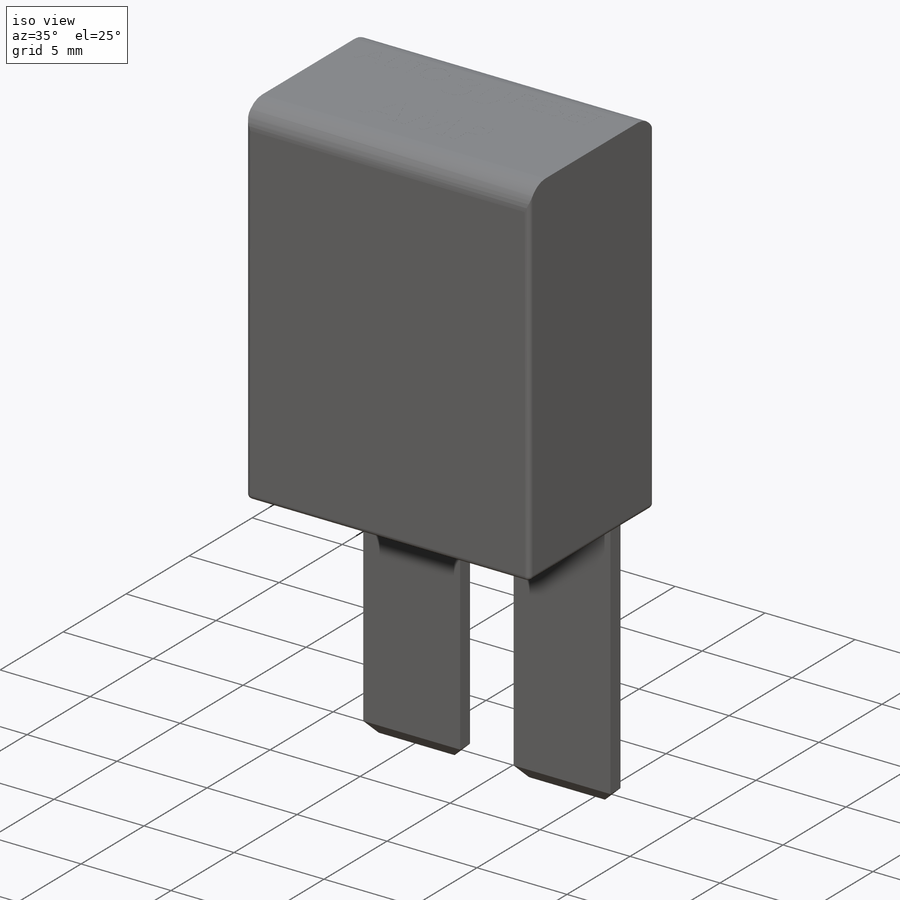
[diagram: iso view]
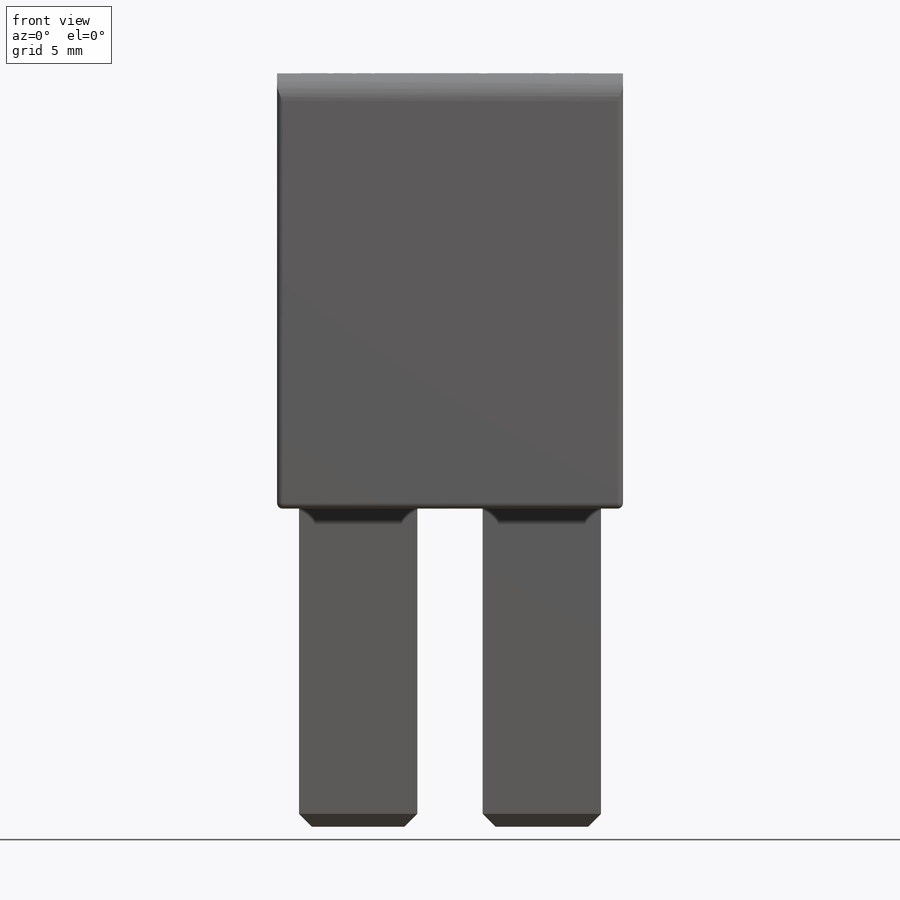
[diagram: front view]
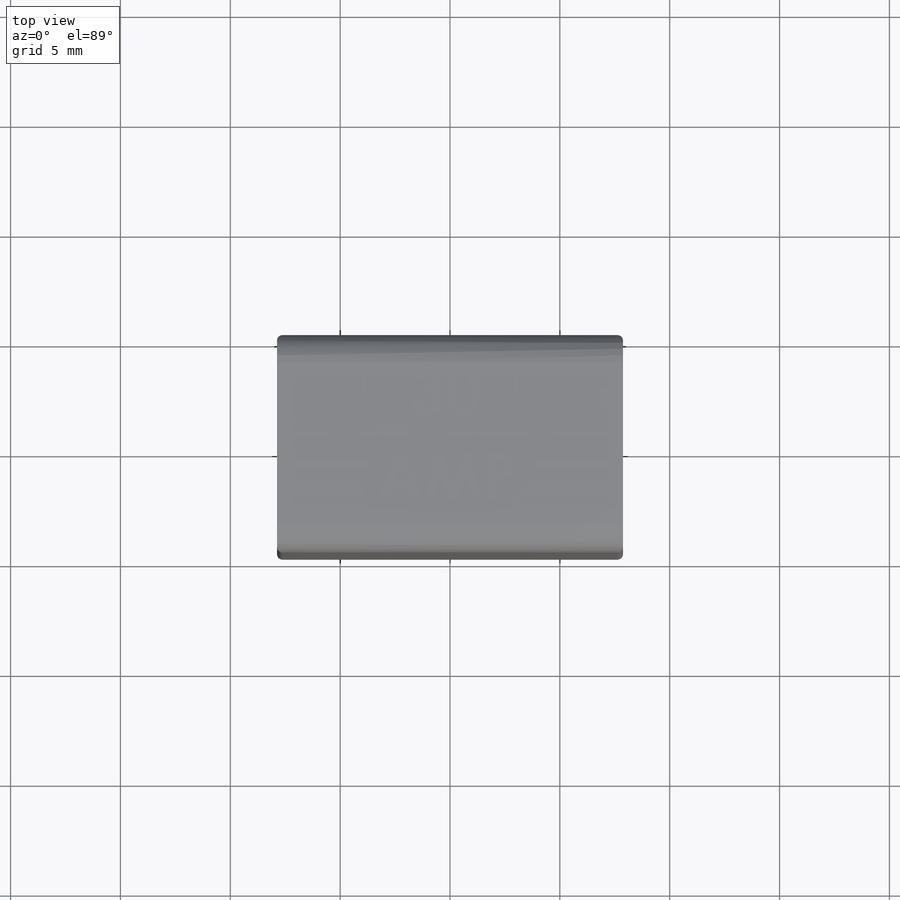
[diagram: top view]
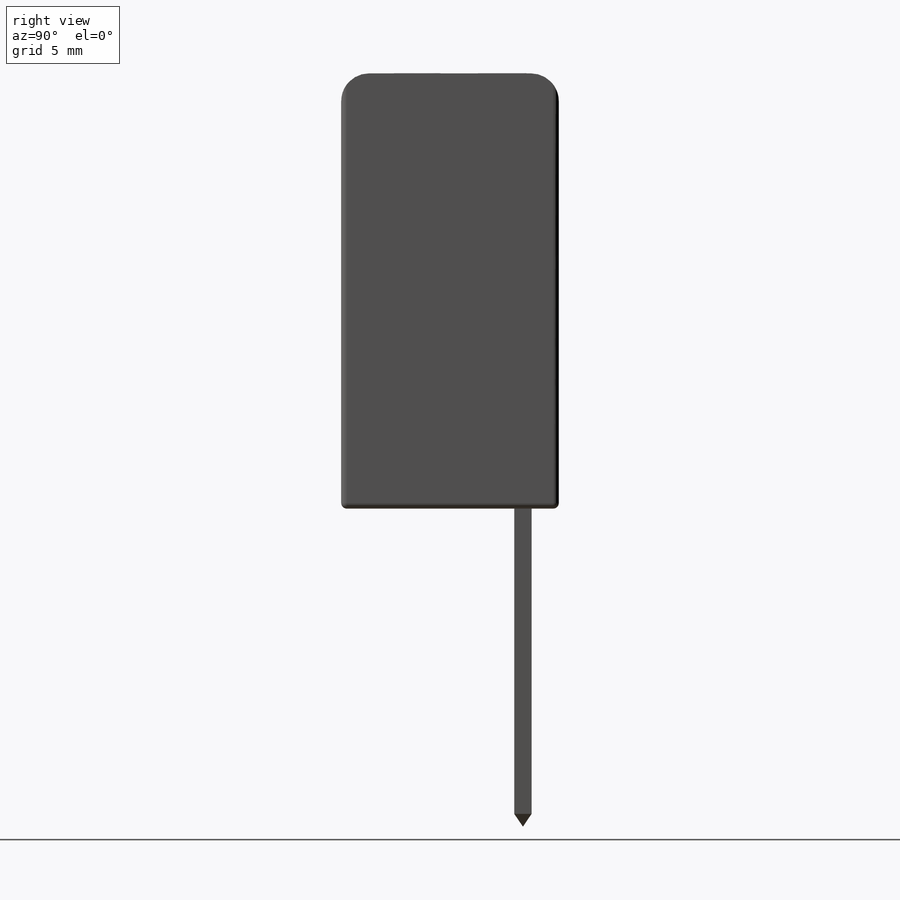
[diagram: right view]
SOLIDWORKS PART (.sldprt)
format: sldprt  version: not decoded by parser v0  size: 427,520 bytes
history: native  units: mm
features: sketch x3, extrude x3, fillet x2, chamfer x2, material x1, mirror x1 (+12 scaffold rows collapsed)
feature tree (24):
  scaffold x12  (default folders/planes/origin — collapsed)
  material  "Free-Cutting Brass, UNS C36000"
  sketch  "Sketch1"  dims[D1=15.748mm D2=9.906mm D3=9.906mm D4=15.748mm]
  extrude  "Extrude1"  Depth=19.812mm
  fillet  "Fillet1"  Radius=1.27mm
  fillet  "Fillet2"  Radius=0.254mm
  sketch  "Sketch2"  dims[D1=5.3848mm D2=0.7874mm D3=~1.23952mm D4=1.0033mm]
  extrude  "Extrude2"  Depth=14.478mm
  chamfer  "Chamfer1"  Distance=0.5842mm Angle=45deg
  chamfer  "Chamfer2"  Distance=0.5842mm Angle=34deg
  mirror  "Mirror1"
  sketch  "Sketch3"  dims[D1=~1.025305mm D2=~4.534217mm D3=~6.057127mm D4=~1.131934mm D5=~5.010926mm D6=~5.758077mm]
  extrude  "Extrude3"  Depth=0.00254mm
decode coverage: 10 of 11 modeling features carry decoded parameters
note: ~ marks probable driven/reference dimensions
note: suppression state not decoded; provenance and decode notes live in map.json
